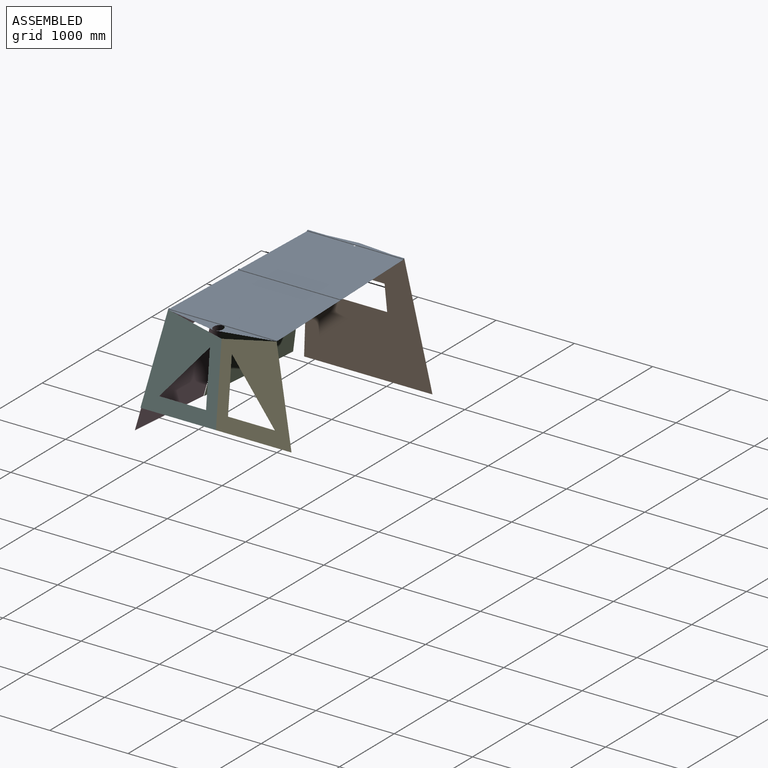
[diagram: assembled view]
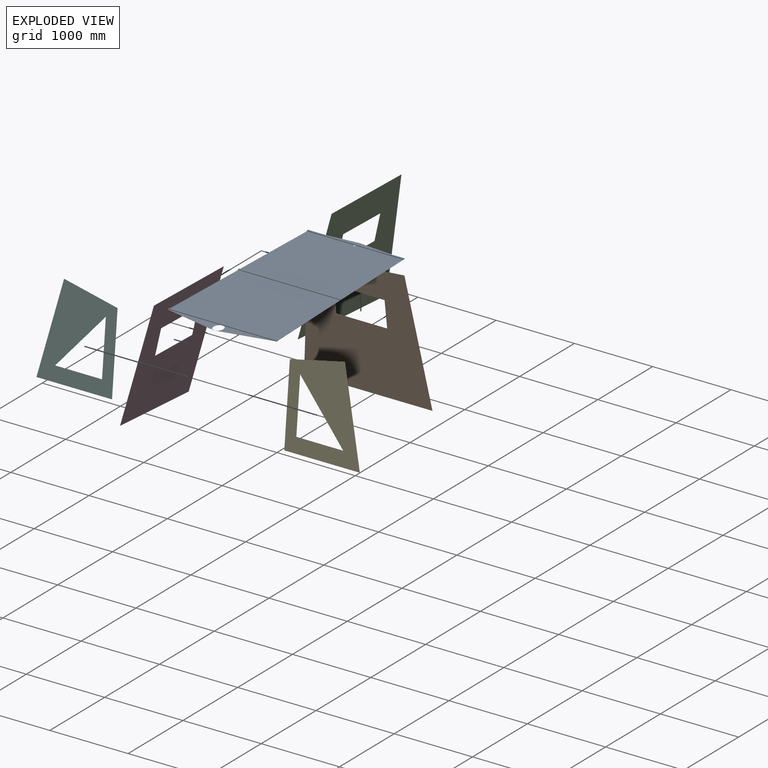
[diagram: exploded view]
GUIDED TOUR — FREECAD ASSEMBLY "cockpitzelt"

This assembly has 6 components, labeled P0..P5 below (a component is one placed body or linked part; the same part can appear more than once), held together by 0 modeled joints plus 9 derived contact edges. A joint is a constraint between two components; its type names the relative motion it leaves free:
  CONTACT — a derived adjacency edge — the two components touch in the source model (clearance under 2% of the assembly's diagonal); it is measured from the geometry, not a modeled constraint.
Axis/direction vectors are unit vectors and 'through' points are millimeter coordinates, both in the assembly's world frame.

MATES
  1. CONTACT "contact_0_1": P0 <-> P1, contact direction (0.000, 0.000, -1.000) through (-614.93, 2590.77, -0.24) mm (derived from contact, not a modeled constraint)
  2. CONTACT "contact_0_2": P0 <-> P2, contact direction (0.000, 1.000, 0.000) through (-653.85, 1368.33, -1.25) mm (derived from contact, not a modeled constraint)
  3. CONTACT "contact_0_3": P0 <-> P3, contact direction (-1.000, 0.000, 0.000) through (-650.41, 1369.42, -2.09) mm (derived from contact, not a modeled constraint)
  4. CONTACT "contact_0_4": P0 <-> P4, contact direction (1.000, 0.000, 0.000) through (692.84, 149.65, -0.02) mm (derived from contact, not a modeled constraint)
  5. CONTACT "contact_0_5": P0 <-> P5, contact direction (-1.000, 0.000, 0.000) through (-692.84, 149.65, 0.48) mm (derived from contact, not a modeled constraint)
  6. CONTACT "contact_1_2": P1 <-> P2, contact direction (-0.958, -0.091, -0.272) through (-615.18, 2588.79, -1.50) mm (derived from contact, not a modeled constraint)
  7. CONTACT "contact_2_3": P2 <-> P3, contact direction (0.000, -1.000, 0.000) through (-992.96, 1228.66, -1490.49) mm (derived from contact, not a modeled constraint)
  8. CONTACT "contact_3_5": P3 <-> P5, contact direction (0.000, -1.000, 0.000) through (-689.23, 149.37, -2.12) mm (derived from contact, not a modeled constraint)
  9. CONTACT "contact_4_5": P4 <-> P5, contact direction (-1.000, 0.000, 0.000) through (0.00, 133.56, -147.30) mm (derived from contact, not a modeled constraint)

ASSEMBLY ORDER
  1. P2 — the base component [order verified]
  2. P1 [order verified]
  3. P3 [order verified]
  4. P5 [order verified]
  5. P0 [order verified]
  6. P4 [order verified]
Order-tag legend:
  [order verified] — this step's position reverses a verified removal order: the component was checked to insert without passing through the ones already placed.

Of the 6 components, 6 carry a construction recipe — the FreeCAD feature program (sketches with constraints, then the solid features that consume them) that regenerates the part from scratch, quoted from this document or from the linked companion document it references; the rest are supplied as boundary geometry only. The tour below walks the components in assembly order: each is shown spotlighted twice — in the assembled view, then in the exploded view, where a leader line traces a displaced component back to its assembled socket (components that stay in place when exploded have no leader line; saturated green if recipe-attached, orange if geometry-only; every other component desaturated gray) — followed by its recipe or geometry summary and the mates that hold it.
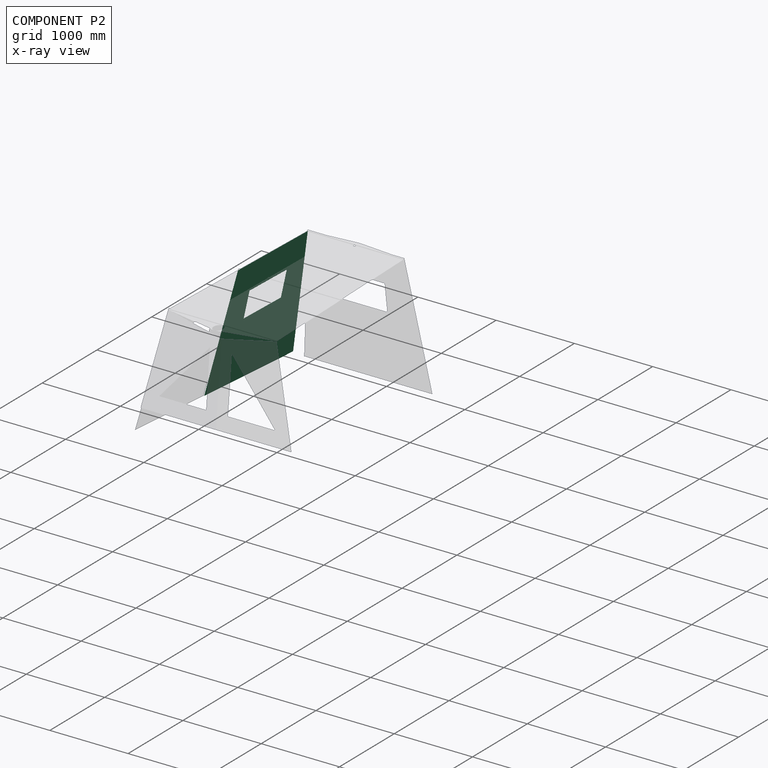
[diagram: component P2 — x-ray view]
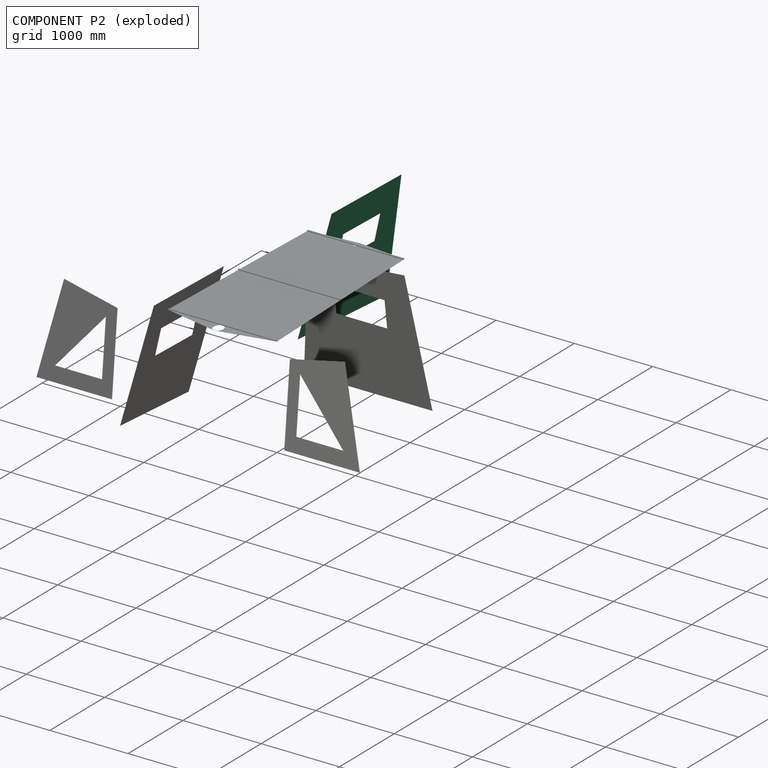
[diagram: component P2 — exploded]
COMPONENT P2 — recipe-attached ("Seitenwand-Achtern", modeled in this document).
Held by: resting contact with P0 (derived edge); resting contact with P1 (derived edge); resting contact with P3 (derived edge).
Construction recipe (the document's own serialized feature program — sketch geometry with constraints, then the solid features built on it; lengths are millimeters unless a unit is written):

FEATURE [Sketcher::SketchObject] Sketch008  label="Seitenwand-Achtern-Skizze"
  ArcFitTolerance = 1e-06
  AttachmentOffset = pos=(0,0,12) rot=(0,0,1;0rad)
  AttachmentSupport = -> [YZ_Plane004]
  FullyConstrained = true
  MakeInternals = false
  MapMode = 5
  Placement = pos=(12,0,0) rot=(0.57735,0.57735,0.57735;2.0944rad)
  sketch-geometry (4):
    g0: LineSegment StartX=1367.68 StartY=0 StartZ=0 EndX=1219.81 EndY=-1525.29 EndZ=0
    g1: LineSegment StartX=1219.81 StartY=-1525.29 StartZ=0 EndX=2797.73 EndY=-1606.32 EndZ=0
    g2: LineSegment StartX=2797.73 StartY=-1606.32 StartZ=0 EndX=2587.68 EndY=0 EndZ=0
    g3: LineSegment StartX=2587.68 StartY=0 StartZ=0 EndX=1367.68 EndY=0 EndZ=0
  constraints (12):
    c: PointOnObject(g0,g-1)
    c: PointOnObject(g2,g-1)
    c: Coincident(g0,g1)
    c: Coincident(g1,g2)
    c: Coincident(g2,g3)
    c: Coincident(g3,g0)
    c: Distance(g2,g2) = 1620
    c: Angle(g2,g1) = 1.38946
    c: DistanceX(g3,g3) = 1220
    c: Distance(g1) = 1580
    c: Distance(g0) = 1532.44
    c: DistanceX(g-1,g0) = 1367.68
FEATURE [PartDesign::Pad] Pad007
  Direction = (1,0,0)
  Length = 1
  Length2 = 10
  Midplane = true
  Placement = pos=(0,0,0) rot=(1,1,1;2.0944rad)
  Profile = -> Sketch008
  ReferenceAxis = -> Sketch008 [N_Axis]
  Refine = true
  Suppressed = false
  Type = 0
FEATURE [Sketcher::SketchObject] Sketch012
  ArcFitTolerance = 1e-06
  AttachmentSupport = -> [YZ_Plane004]
  FullyConstrained = true
  MakeInternals = false
  MapMode = 5
  Placement = pos=(0,0,0) rot=(0.57735,0.57735,0.57735;2.0944rad)
  sketch-geometry (4):
    g0: LineSegment StartX=1681.19 StartY=-385 StartZ=0 EndX=1681.19 EndY=-735 EndZ=0
    g1: LineSegment StartX=1681.19 StartY=-735 StartZ=0 EndX=2331.19 EndY=-735 EndZ=0
    g2: LineSegment StartX=2331.19 StartY=-735 StartZ=0 EndX=2331.19 EndY=-385 EndZ=0
    g3: LineSegment StartX=2331.19 StartY=-385 StartZ=0 EndX=1681.19 EndY=-385 EndZ=0
  constraints (12):
    c: Coincident(g0,g1)
    c: Coincident(g1,g2)
    c: Coincident(g2,g3)
    c: Coincident(g3,g0)
    c: Vertical(g0)
    c: Vertical(g2)
    c: Horizontal(g1)
    c: Horizontal(g3)
    c: DistanceX(g3,g3) = 650
    c: Distance(g2,g2) = 350
    c: DistanceY(g-1,g2) = -385
    c: DistanceX(g-2,g0) = 1681.19
FEATURE [PartDesign::Pocket] Pocket003  label="Fenster Seite Hinten"
  BaseFeature = -> Pad007
  Direction = (-1,0,0)
  Length = 5
  Length2 = 5
  Midplane = true
  Placement = pos=(0,0,0) rot=(1,1,1;2.0944rad)
  Profile = -> Sketch012
  ReferenceAxis = -> Sketch012 [N_Axis]
  Refine = true
  Suppressed = false
  Type = 1
FEATURE [PartDesign::Body] Body003  label="Seitenwand-Achtern"
  AllowCompound = false
  Group = -> [Sketch008,Pad007,Sketch012,Pocket003]
  Origin = -> Origin004
  Placement = pos=(-708,0.000244141,9.15527e-05) rot=(0.01555,0.989876,-0.141078;0.22179rad)
  Tip = -> Pocket003
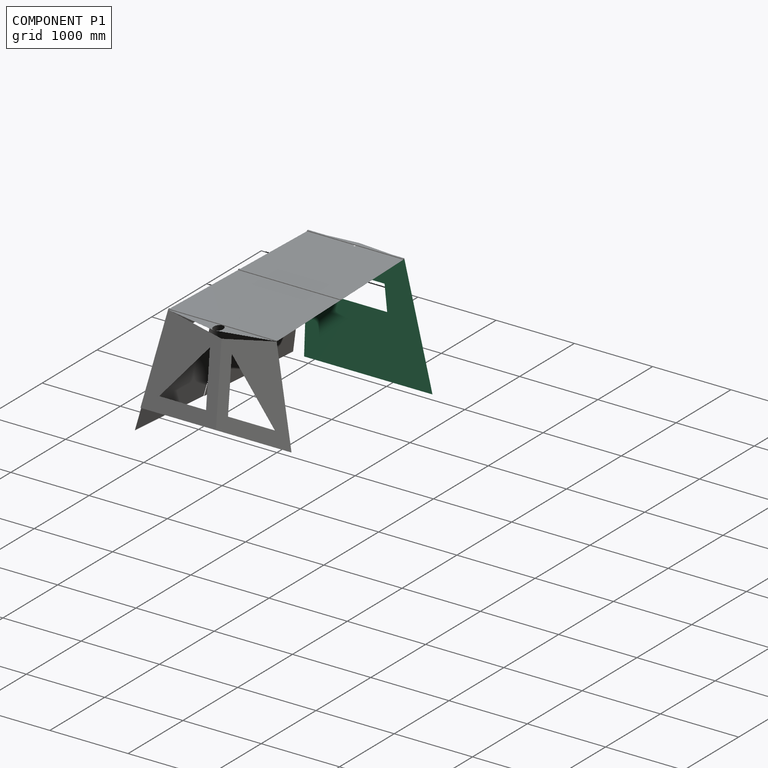
[diagram: component P1 — assembled]
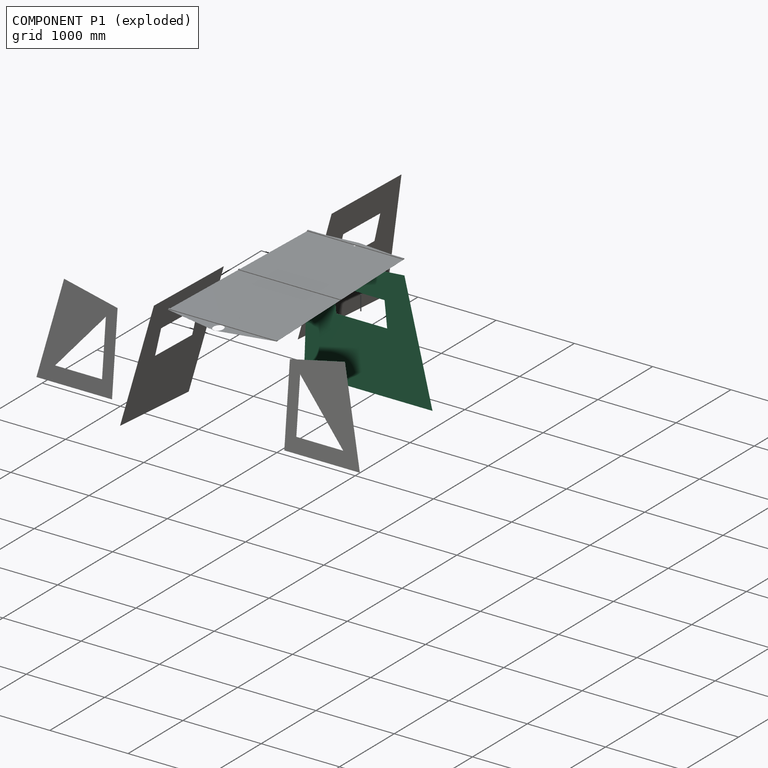
[diagram: component P1 — exploded]
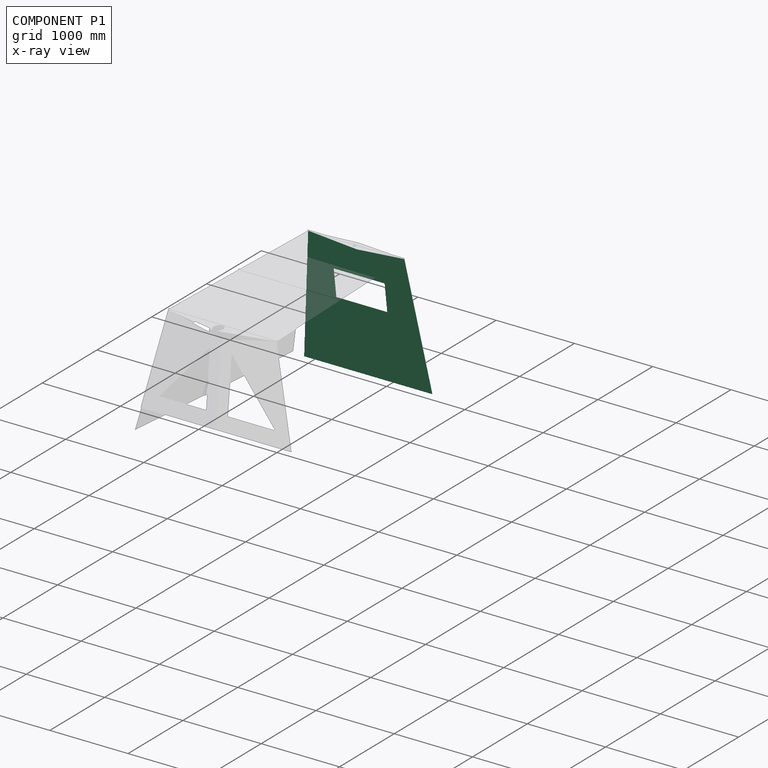
[diagram: component P1 — x-ray view]
COMPONENT P1 — recipe-attached ("Heckwand", modeled in this document).
Held by: resting contact with P0 (derived edge); resting contact with P2 (derived edge).
Construction recipe (the document's own serialized feature program — sketch geometry with constraints, then the solid features built on it; lengths are millimeters unless a unit is written):

FEATURE [Sketcher::SketchObject] Sketch007
  ArcFitTolerance = 1e-06
  AttachmentSupport = -> [XZ_Plane003]
  FullyConstrained = true
  MakeInternals = false
  MapMode = 5
  Placement = pos=(0,0,0) rot=(1,0,0;1.5708rad)
  sketch-geometry (5):
    g0: LineSegment StartX=0 StartY=-55 StartZ=0 EndX=614.865 EndY=0 EndZ=0
    g1: LineSegment StartX=614.865 StartY=0 StartZ=0 EndX=820 EndY=-1606.96 EndZ=0
    g2: LineSegment StartX=820 StartY=-1606.96 StartZ=0 EndX=-820 EndY=-1606.96 EndZ=0
    g3: LineSegment StartX=-820 StartY=-1606.96 StartZ=0 EndX=-614.865 EndY=0 EndZ=0
    g4: LineSegment StartX=-614.865 StartY=0 StartZ=0 EndX=0 EndY=-55 EndZ=0
  constraints (15):
    c: Coincident(g0,g1)
    c: Coincident(g1,g2)
    c: Horizontal(g2)
    c: Coincident(g2,g3)
    c: Coincident(g3,g4)
    c: Coincident(g4,g0)
    c: Distance(g3,g3) = 1620
    c: Distance(g1,g1) = 1620
    c: Distance(g4,g4) = 617.32
    c: Distance(g0,g0) = 617.32
    c: DistanceX(g2,g2) = 1640
    c: PointOnObject(g3,g-1)
    c: PointOnObject(g0,g-1)
    c: PointOnObject(g0,g-2)
    c: DistanceY(g0,g-1) = 55
FEATURE [PartDesign::Pad] Pad005
  Direction = (0,-1,2e-16)
  Length = 1
  Length2 = 10
  Midplane = true
  Placement = pos=(0,0,0) rot=(1,0,0;1.5708rad)
  Profile = -> Sketch007
  ReferenceAxis = -> Sketch007 [N_Axis]
  Refine = true
  Suppressed = false
  Type = 0
FEATURE [Sketcher::SketchObject] Sketch011
  ArcFitTolerance = 1e-06
  AttachmentSupport = -> [XZ_Plane003]
  FullyConstrained = true
  MakeInternals = false
  MapMode = 5
  Placement = pos=(0,0,0) rot=(1,0,0;1.5708rad)
  sketch-geometry (5):
    g0: LineSegment StartX=-325 StartY=-385 StartZ=0 EndX=-325 EndY=-735 EndZ=0
    g1: LineSegment StartX=-325 StartY=-735 StartZ=0 EndX=325 EndY=-735 EndZ=0
    g2: LineSegment StartX=325 StartY=-735 StartZ=0 EndX=325 EndY=-385 EndZ=0
    g3: LineSegment StartX=325 StartY=-385 StartZ=0 EndX=-325 EndY=-385 EndZ=0
    g4: GeomPoint X=0 Y=0 Z=0
  constraints (12):
    c: Coincident(g0,g1)
    c: Coincident(g1,g2)
    c: Coincident(g2,g3)
    c: Coincident(g3,g0)
    c: Vertical(g0)
    c: Vertical(g2)
    c: Horizontal(g1)
    c: Symmetric(g0,g2,g-2)
    c: DistanceX(g3,g3) = 650
    c: DistanceY(g2,g2) = 350
    c: Distance(g4,g3) = 385
    c: Coincident(g4,g-1)
FEATURE [PartDesign::Pocket] Pocket002  label="Fenster Achtern"
  BaseFeature = -> Pad005
  Direction = (0,1,-2e-16)
  Length = 5
  Length2 = 5
  Midplane = true
  Placement = pos=(0,0,0) rot=(1,0,0;1.5708rad)
  Profile = -> Sketch011
  ReferenceAxis = -> Sketch011 [N_Axis]
  Refine = true
  Suppressed = false
  Type = 1
FEATURE [PartDesign::Body] Body002  label="Heckwand"
  AllowCompound = false
  Group = -> [Sketch007,Pad005,Sketch011,Pocket002]
  Origin = -> Origin003
  Placement = pos=(0,2592.03,-0.417519) rot=(-1,0,0;6.14635rad)
  Tip = -> Pocket002
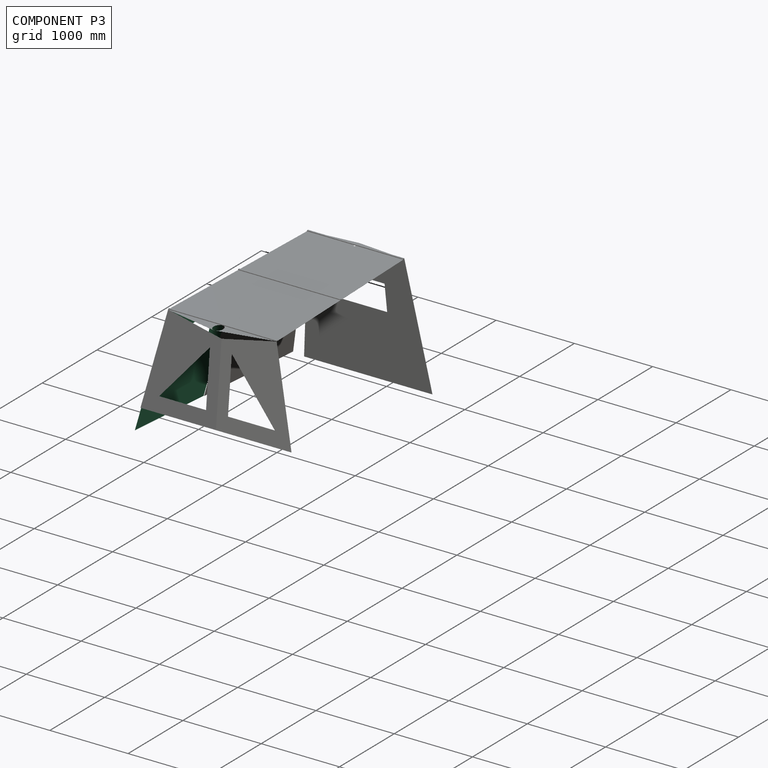
[diagram: component P3 — assembled]
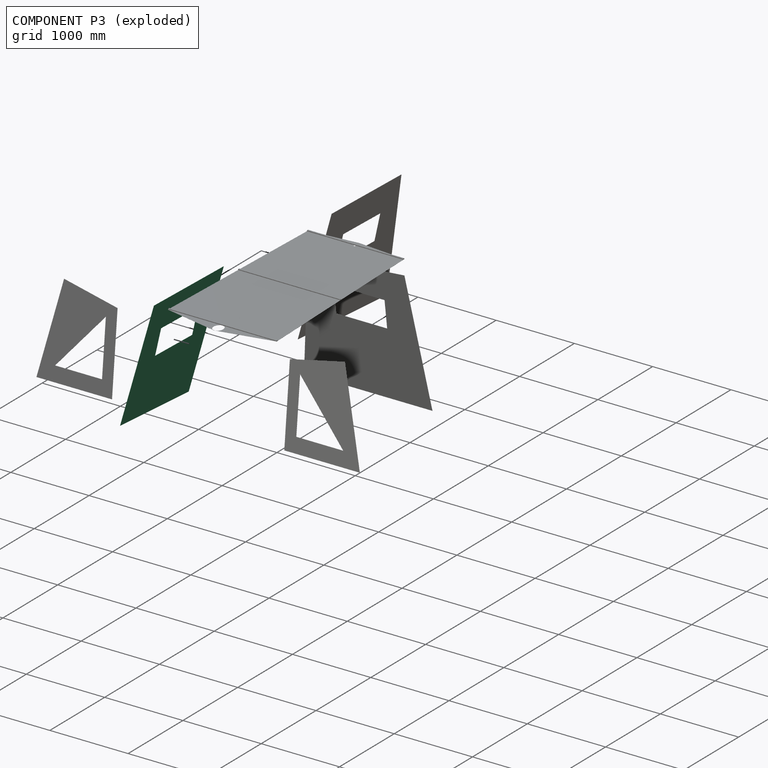
[diagram: component P3 — exploded]
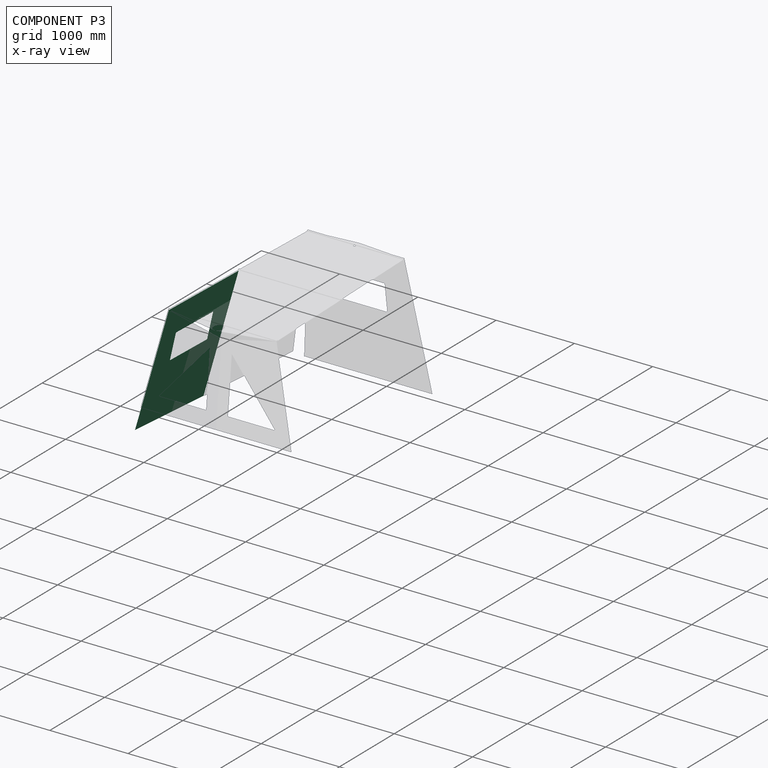
[diagram: component P3 — x-ray view]
COMPONENT P3 — recipe-attached ("Seitenwand-Vorn", modeled in this document).
Held by: resting contact with P0 (derived edge); resting contact with P2 (derived edge); resting contact with P5 (derived edge).
Construction recipe (the document's own serialized feature program — sketch geometry with constraints, then the solid features built on it; lengths are millimeters unless a unit is written):

FEATURE [Sketcher::SketchObject] Sketch009  label="Seitenwand-Vorn-Skizze"
  ArcFitTolerance = 1e-06
  AttachmentOffset = pos=(0,0,12) rot=(0,0,1;0rad)
  AttachmentSupport = -> [YZ_Plane005]
  FullyConstrained = true
  MakeInternals = false
  MapMode = 5
  Placement = pos=(12,0,0) rot=(0.57735,0.57735,0.57735;2.0944rad)
  sketch-geometry (4):
    g0: LineSegment StartX=150.084 StartY=0 StartZ=0 EndX=0 EndY=-1462.32 EndZ=0
    g1: LineSegment StartX=0 StartY=-1462.32 StartZ=0 EndX=1218.39 EndY=-1524.89 EndZ=0
    g2: LineSegment StartX=1218.39 StartY=-1524.89 StartZ=0 EndX=1370.08 EndY=0 EndZ=0
    g3: LineSegment StartX=1370.08 StartY=0 StartZ=0 EndX=150.084 EndY=0 EndZ=0
  constraints (12):
    c: PointOnObject(g0,g-1)
    c: PointOnObject(g2,g-1)
    c: PointOnObject(g0,g-2)
    c: Coincident(g0,g1)
    c: Coincident(g1,g2)
    c: Coincident(g2,g3)
    c: Coincident(g3,g0)
    c: Distance(g0,g0) = 1470
    c: Angle(g0,g3) = 1.67307
    c: Angle(g1,g0) = 1.51983
    c: DistanceX(g3,g3) = 1220
    c: Distance(g1,g1) = 1220
FEATURE [PartDesign::Pad] Pad006
  Direction = (1,0,0)
  Length = 1
  Length2 = 10
  Midplane = true
  Placement = pos=(0,0,0) rot=(1,1,1;2.0944rad)
  Profile = -> Sketch009
  ReferenceAxis = -> Sketch009 [N_Axis]
  Refine = true
  Suppressed = false
  Type = 0
FEATURE [Sketcher::SketchObject] Sketch013
  ArcFitTolerance = 1e-06
  AttachmentSupport = -> [YZ_Plane005]
  FullyConstrained = true
  MakeInternals = false
  MapMode = 5
  Placement = pos=(0,0,0) rot=(0.57735,0.57735,0.57735;2.0944rad)
  sketch-geometry (4):
    g0: LineSegment StartX=391.03 StartY=-385 StartZ=0 EndX=391.03 EndY=-735 EndZ=0
    g1: LineSegment StartX=391.03 StartY=-735 StartZ=0 EndX=1041.03 EndY=-735 EndZ=0
    g2: LineSegment StartX=1041.03 StartY=-735 StartZ=0 EndX=1041.03 EndY=-385 EndZ=0
    g3: LineSegment StartX=1041.03 StartY=-385 StartZ=0 EndX=391.03 EndY=-385 EndZ=0
  constraints (12):
    c: Coincident(g0,g1)
    c: Coincident(g1,g2)
    c: Coincident(g2,g3)
    c: Coincident(g3,g0)
    c: Vertical(g0)
    c: Vertical(g2)
    c: Horizontal(g1)
    c: Horizontal(g3)
    c: DistanceX(g3,g3) = 650
    c: DistanceY(g2,g2) = 350
    c: DistanceY(g-1,g2) = -385
    c: DistanceX(g-2,g0) = 391.03
FEATURE [PartDesign::Pocket] Pocket004
  BaseFeature = -> Pad006
  Direction = (-1,0,0)
  Length = 5
  Length2 = 5
  Midplane = true
  Placement = pos=(0,0,0) rot=(1,1,1;2.0944rad)
  Profile = -> Sketch013
  ReferenceAxis = -> Sketch013 [N_Axis]
  Refine = true
  Suppressed = false
  Type = 1
FEATURE [PartDesign::Body] Body004  label="Seitenwand-Vorn"
  AllowCompound = false
  Group = -> [Sketch009,Pad006,Sketch013,Pocket004]
  Origin = -> Origin005
  Placement = pos=(-701.185,-0.213935,-1.5829) rot=(0.015562,0.990608,-0.135846;0.230258rad)
  Tip = -> Pocket004
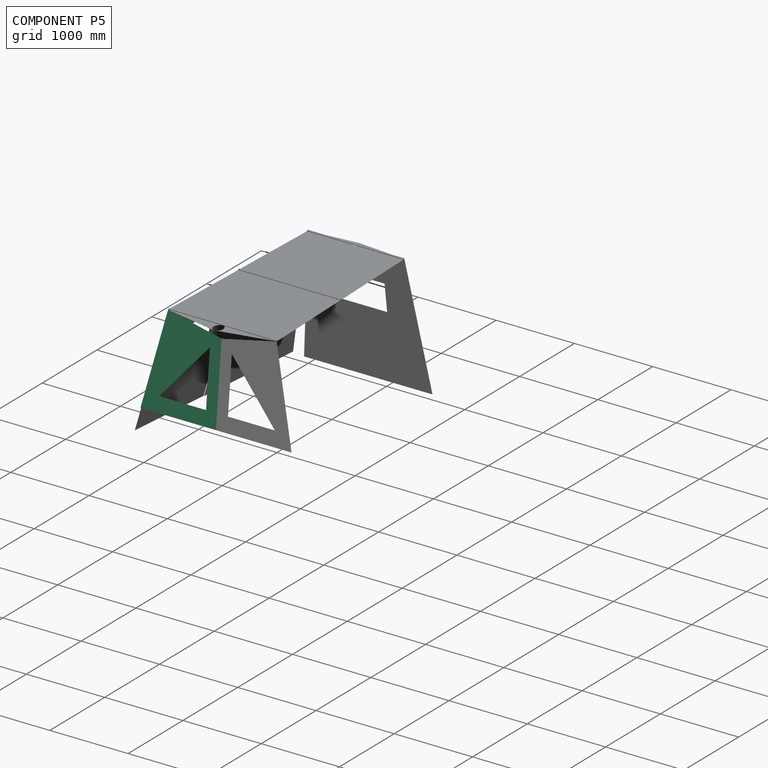
[diagram: component P5 — assembled]
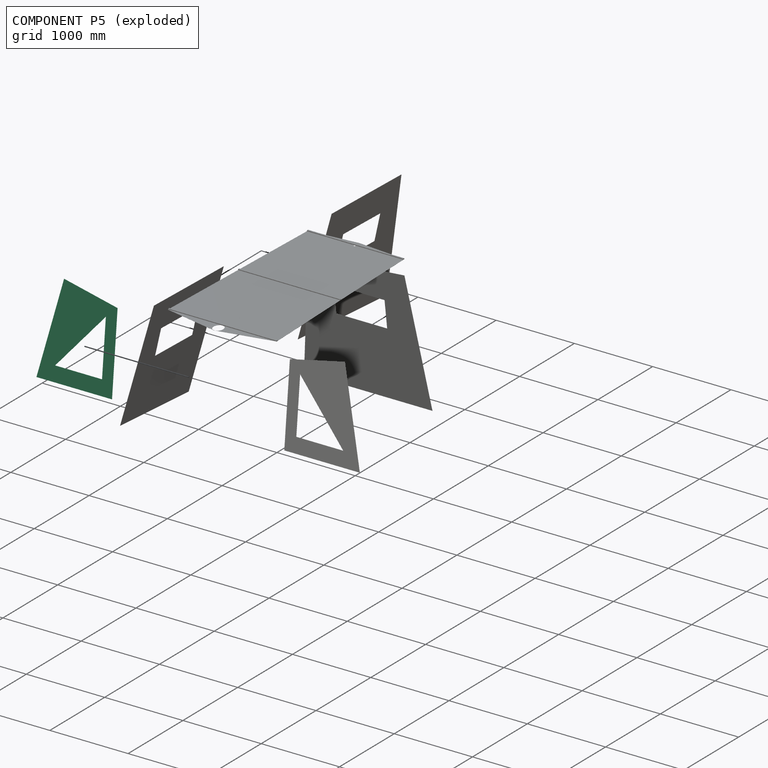
[diagram: component P5 — exploded]
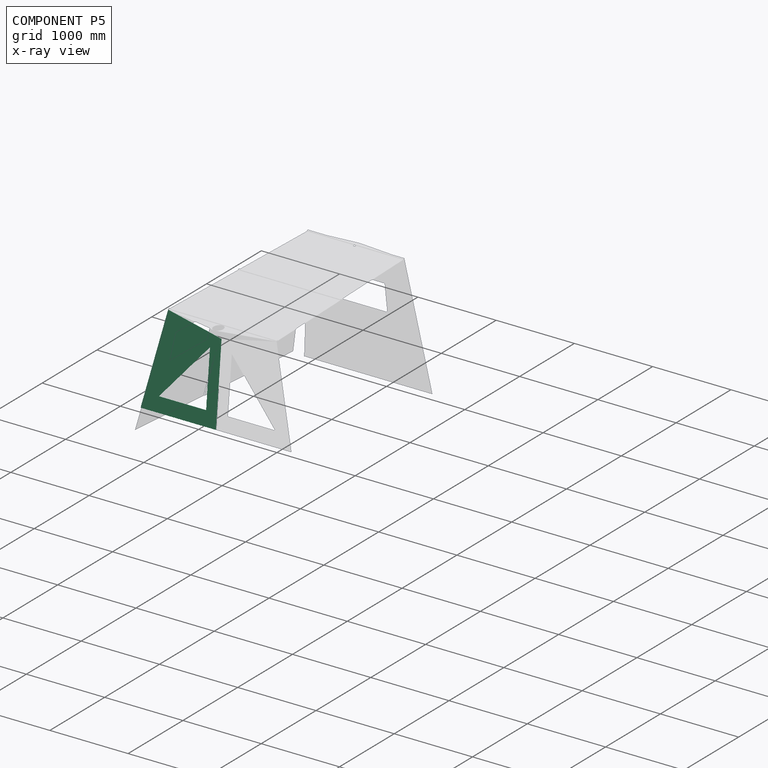
[diagram: component P5 — x-ray view]
COMPONENT P5 — recipe-attached ("Vorderwand-Sb", modeled in this document).
Held by: resting contact with P0 (derived edge); resting contact with P3 (derived edge); resting contact with P4 (derived edge).
Construction recipe (the document's own serialized feature program — sketch geometry with constraints, then the solid features built on it; lengths are millimeters unless a unit is written):

FEATURE [Sketcher::SketchObject] Sketch015  label="Vorderwand-Sb-Skizze"
  ArcFitTolerance = 1e-06
  AttachmentSupport = -> [XZ_Plane008]
  FullyConstrained = true
  MakeInternals = false
  MapMode = 5
  Placement = pos=(0,0,0) rot=(1,0,0;1.5708rad)
  sketch-geometry (4):
    g0: LineSegment StartX=0 StartY=-1168.81 StartZ=0 EndX=-965 EndY=-1168.81 EndZ=0
    g1: LineSegment StartX=-965 StartY=-1168.81 StartZ=0 EndX=-693.178 EndY=0.00226827 EndZ=0
    g2: LineSegment StartX=-693.178 StartY=0.00226827 StartZ=0 EndX=0 EndY=-148.086 EndZ=0
    g3: LineSegment StartX=0 StartY=-148.086 StartZ=0 EndX=0 EndY=-1168.81 EndZ=0
  constraints (12):
    c: PointOnObject(g0,g-2)
    c: Horizontal(g0)
    c: Coincident(g0,g1)
    c: Coincident(g1,g2)
    c: DistanceX(g0,g0) = 965
    c: Distance(g1,g1) = 1200
    c: Distance(g2,g2) = 708.82
    c: PointOnObject(g2,g-2)
    c: DistanceY(g2,g-1) = 148.086
    c: Coincident(g3,g2)
    c: Coincident(g3,g0)
    c: Distance(g3) = 1020.72
FEATURE [PartDesign::Pad] Pad010
  Direction = (0,-1,2e-16)
  Length = 1
  Length2 = 10
  Midplane = true
  Placement = pos=(0,0,0) rot=(1,0,0;1.5708rad)
  Profile = -> Sketch015
  ReferenceAxis = -> Sketch015 [N_Axis]
  Refine = true
  Suppressed = false
  Type = 0
FEATURE [Sketcher::SketchObject] Sketch017
  ArcFitTolerance = 1e-06
  AttachmentSupport = -> [XZ_Plane008]
  FullyConstrained = true
  MakeInternals = false
  MapMode = 5
  Placement = pos=(0,0,0) rot=(1,0,0;1.5708rad)
  sketch-geometry (3):
    g0: LineSegment StartX=-740 StartY=-981.16 StartZ=0 EndX=-140 EndY=-281.16 EndZ=0
    g1: LineSegment StartX=-140 StartY=-281.16 StartZ=0 EndX=-140 EndY=-981.16 EndZ=0
    g2: LineSegment StartX=-140 StartY=-981.16 StartZ=0 EndX=-740 EndY=-981.16 EndZ=0
  constraints (9):
    c: Coincident(g0,g1)
    c: Coincident(g1,g2)
    c: Coincident(g2,g0)
    c: Horizontal(g2)
    c: Distance(g2) = 600
    c: Distance(g1) = 700
    c: Perpendicular(g1,g2)
    c: DistanceX(g-2,g0) = -140
    c: DistanceY(g-1,g0) = -281.16
FEATURE [PartDesign::Pocket] Pocket005
  BaseFeature = -> Pad010
  Direction = (0,1,-2e-16)
  Length = 5
  Length2 = 5
  Midplane = true
  Placement = pos=(0,0,0) rot=(1,0,0;1.5708rad)
  Profile = -> Sketch017
  ReferenceAxis = -> Sketch017 [N_Axis]
  Refine = true
  Suppressed = false
  Type = 1
FEATURE [PartDesign::Body] Body007  label="Vorderwand-Sb"
  AllowCompound = false
  Group = -> [Sketch015,Pad010,Sketch017,Pocket005]
  Origin = -> Origin008
  Placement = pos=(0,148.8,0) rot=(1,0,0;6.1837rad)
  Tip = -> Pocket005
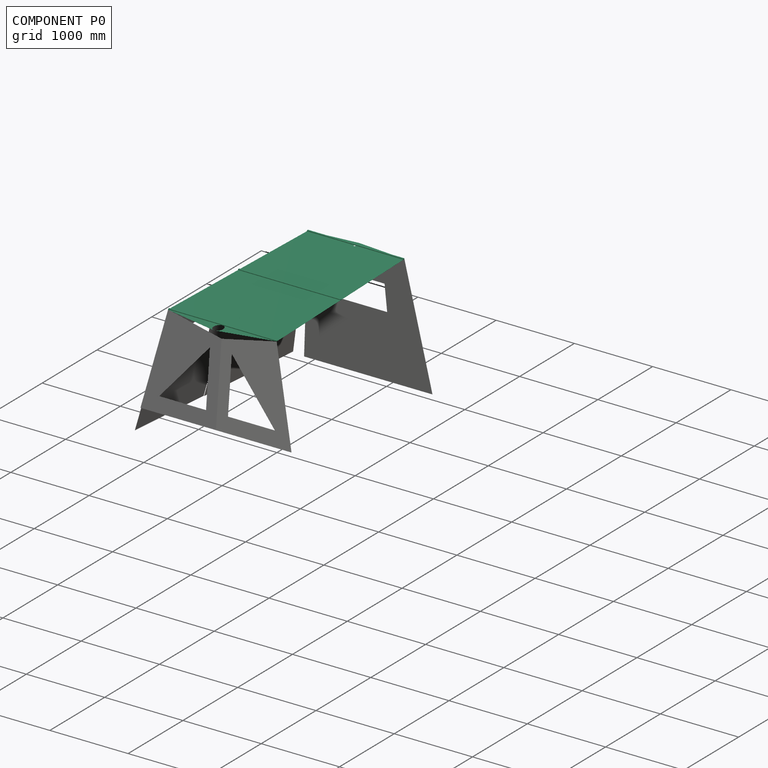
[diagram: component P0 — assembled]
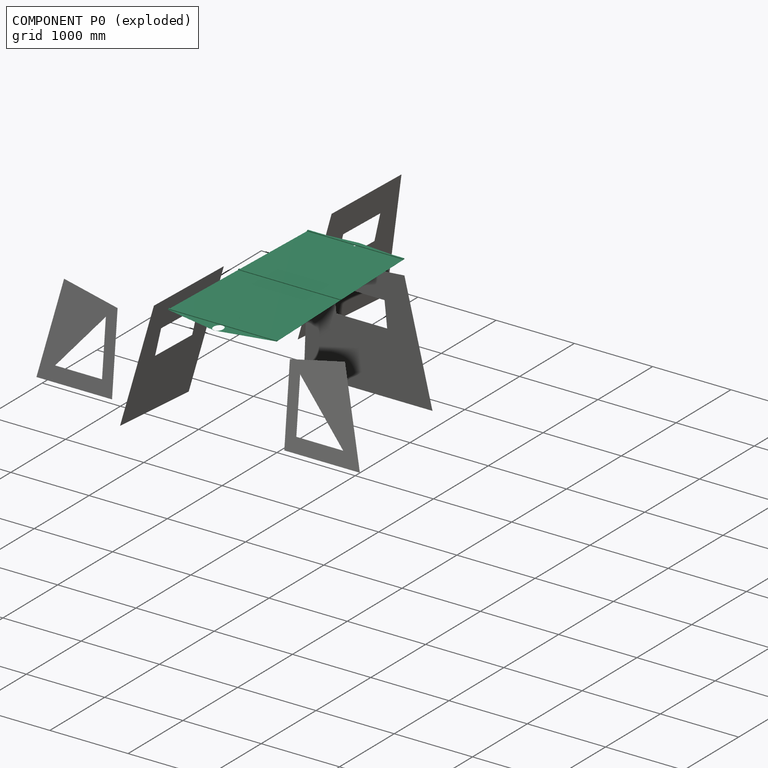
[diagram: component P0 — exploded]
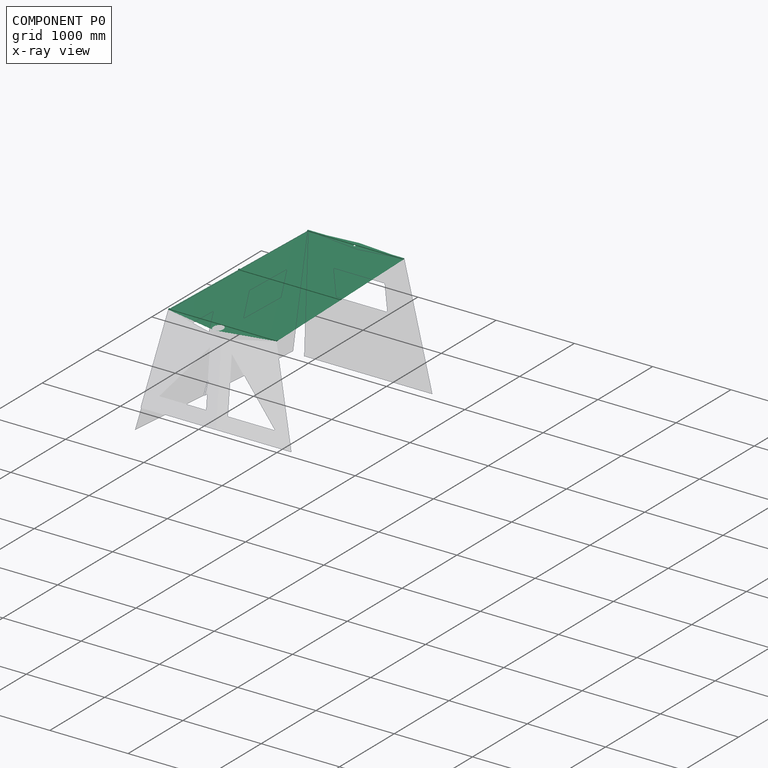
[diagram: component P0 — x-ray view]
COMPONENT P0 — recipe-attached ("Dach", modeled in this document).
Held by: resting contact with P1 (derived edge); resting contact with P2 (derived edge); resting contact with P3 (derived edge); resting contact with P4 (derived edge); resting contact with P5 (derived edge).
Construction recipe (the document's own serialized feature program — sketch geometry with constraints, then the solid features built on it; lengths are millimeters unless a unit is written):

FEATURE [Sketcher::SketchObject] Sketch  label="Dachskizze"
  ArcFitTolerance = 1e-06
  AttachmentOffset = pos=(0,0,0) rot=(0,0,1;1.5708rad)
  AttachmentSupport = -> [XY_Plane]
  FullyConstrained = true
  MakeInternals = false
  MapMode = 5
  Placement = pos=(0,0,0) rot=(0,0,1;1.5708rad)
  expr: .AttachmentOffset.Rotation.Angle = 90
  sketch-geometry (6):
    g0: LineSegment StartX=0 StartY=0 StartZ=0 EndX=144.716 EndY=693.89 EndZ=0
    g1: LineSegment StartX=2583.42 StartY=614.241 StartZ=0 EndX=144.716 EndY=693.89 EndZ=0
    g2: LineSegment StartX=0 StartY=0 StartZ=0 EndX=151.454 EndY=-692.45 EndZ=0
    g3: LineSegment StartX=2590.25 StartY=-615.741 StartZ=0 EndX=151.454 EndY=-692.45 EndZ=0
    g4: LineSegment StartX=2645 StartY=0 StartZ=0 EndX=2590.25 EndY=-615.741 EndZ=0
    g5: LineSegment StartX=2583.42 StartY=614.241 StartZ=0 EndX=2645 EndY=0 EndZ=0
  constraints (17):
    c: Coincident(g5,g1)
    c: Distance(g3) = 2440
    c: Distance(g1) = 2440
    c: Distance(g0,g4) = 2645
    c: Distance(g0,g2) = 708.82
    c: Distance(g0,g0) = 708.82
    c: PointOnObject(g4,g-1)
    c: Coincident(g0,g1)
    c: Coincident(g0,g2)
    c: Coincident(g0,g-1)
    c: Coincident(g3,g2)
    c: Coincident(g5,g4)
    c: Coincident(g3,g4)
    c: Distance(g1,g3) = 1230
    c: Distance(g5,g5) = 617.32
    c: Distance(g4,g3) = 618.17
    c: Angle(g0,g1) = 1.74376
FEATURE [PartDesign::Pad] Pad
  Direction = (0,0,1)
  Length = 1
  Length2 = 10
  Profile = -> Sketch
  ReferenceAxis = -> Sketch [N_Axis]
  Refine = true
  Suppressed = false
  Type = 0
FEATURE [Sketcher::SketchObject] Sketch001  label="Mastausschnitt"
  ArcFitTolerance = 1e-06
  AttachmentOffset = pos=(0,0,0) rot=(0,0,1;1.5708rad)
  AttachmentSupport = -> [Pad]
  FullyConstrained = true
  MakeInternals = false
  MapMode = 5
  Placement = pos=(0,0,1) rot=(0,0,1;1.5708rad)
  sketch-geometry (5):
    g0: Ellipse CenterX=76.3 CenterY=0 CenterZ=0 NormalX=0 NormalY=0 NormalZ=1 MajorRadius=75 MinorRadius=60 AngleXU=0
    g1: LineSegment [constr] StartX=151.3 StartY=0 StartZ=0 EndX=1.3 EndY=0 EndZ=0
    g2: LineSegment [constr] StartX=76.3 StartY=60 StartZ=0 EndX=76.3 EndY=-60 EndZ=0
    g3: GeomPoint [constr] X=121.3 Y=0 Z=0
    g4: GeomPoint [constr] X=31.3 Y=0 Z=0
  constraints (6):
    c: InternalAlignment(g1-g4 -> g0) x4
    c: Distance(g2,g2) = 120
    c: Distance(g1,g1) = 150
    c: Distance(g-1,g1) = 1.3
    c: PointOnObject(g3,g-1)
    c: PointOnObject(g4,g-1)
FEATURE [Sketcher::SketchObject] Sketch002  label="Dirkauschnitt"
  ArcFitTolerance = 1e-06
  AttachmentOffset = pos=(0,0,0) rot=(0,0,1;1.5708rad)
  AttachmentSupport = -> [XY_Plane]
  FullyConstrained = true
  MakeInternals = false
  MapMode = 5
  Placement = pos=(0,0,0) rot=(0,0,1;1.5708rad)
  sketch-geometry (4):
    g0: LineSegment StartX=2560 StartY=10 StartZ=0 EndX=2590 EndY=10 EndZ=0
    g1: LineSegment StartX=2590 StartY=10 StartZ=0 EndX=2590 EndY=-10 EndZ=0
    g2: LineSegment StartX=2590 StartY=-10 StartZ=0 EndX=2560 EndY=-10 EndZ=0
    g3: ArcOfCircle CenterX=2560 CenterY=-1e-16 CenterZ=0 NormalX=0 NormalY=0 NormalZ=1 AngleXU=0 Radius=10 StartAngle=1.5708 EndAngle=4.71239
  constraints (11):
    c: Horizontal(g0)
    c: Coincident(g0,g1)
    c: Coincident(g1,g2)
    c: Horizontal(g2)
    c: Tangent(g2,g3) = 1.5708
    c: Coincident(g3,g0)
    c: DistanceY(g1,g1) = 20
    c: DistanceX(g0,g0) = 30
    c: Radius(g3) = 10
    c: Distance(g-1,g1) = 2590
    c: Symmetric(g0,g1,g-1)
FEATURE [PartDesign::Pocket] Pocket  label="Mastausschnitt001"
  BaseFeature = -> Pad
  Direction = (0,0,-1)
  Length = 5
  Length2 = 5
  Midplane = true
  Profile = -> Sketch001
  ReferenceAxis = -> Sketch001 [N_Axis]
  Refine = true
  Suppressed = false
  Type = 1
FEATURE [PartDesign::Pocket] Pocket001  label="Dirkausschnitt"
  BaseFeature = -> Pocket
  Direction = (0,0,-1)
  Length = 5
  Length2 = 5
  Midplane = true
  Profile = -> Sketch002
  ReferenceAxis = -> Sketch002 [N_Axis]
  Refine = true
  Suppressed = false
  Type = 1
FEATURE [Sketcher::SketchObject] Sketch003  label="Dachstange vorn"
  ArcFitTolerance = 1e-06
  AttachmentOffset = pos=(0,0,0) rot=(0,0,1;1.5708rad)
  AttachmentSupport = -> [XY_Plane]
  FullyConstrained = true
  MakeInternals = false
  MapMode = 5
  Placement = pos=(0,0,0) rot=(0,0,1;1.5708rad)
  sketch-geometry (4):
    g0: LineSegment StartX=150 StartY=692.5 StartZ=0 EndX=150 EndY=-692.5 EndZ=0
    g1: LineSegment StartX=150 StartY=692.5 StartZ=0 EndX=170 EndY=692.5 EndZ=0
    g2: LineSegment StartX=170 StartY=692.5 StartZ=0 EndX=170 EndY=-692.5 EndZ=0
    g3: LineSegment StartX=170 StartY=-692.5 StartZ=0 EndX=150 EndY=-692.5 EndZ=0
  constraints (11):
    c: DistanceY(g0,g0) = 1385
    c: Symmetric(g0,g0,g-1)
    c: DistanceX(g-1,g0) = 150
    c: Coincident(g0,g1)
    c: Horizontal(g1)
    c: Coincident(g1,g2)
    c: Vertical(g2)
    c: Coincident(g2,g3)
    c: Coincident(g3,g0)
    c: Horizontal(g3)
    c: DistanceX(g0,g1) = 20
FEATURE [PartDesign::Pad] Pad001  label="Stange Vorn"
  BaseFeature = -> Pocket001
  Direction = (0,0,1)
  Length = 10
  Length2 = 10
  Profile = -> Sketch003
  ReferenceAxis = -> Sketch003 [N_Axis]
  Refine = true
  Suppressed = false
  Type = 0
FEATURE [Sketcher::SketchObject] Sketch004  label="Dachstange Mitte"
  ArcFitTolerance = 1e-06
  AttachmentOffset = pos=(0,0,0) rot=(0,0,1;1.5708rad)
  AttachmentSupport = -> [XY_Plane]
  FullyConstrained = true
  MakeInternals = false
  MapMode = 5
  Placement = pos=(0,0,0) rot=(0,0,1;1.5708rad)
  sketch-geometry (4):
    g0: LineSegment StartX=1370 StartY=655 StartZ=0 EndX=1370 EndY=-655 EndZ=0
    g1: LineSegment StartX=1370 StartY=-655 StartZ=0 EndX=1390 EndY=-655 EndZ=0
    g2: LineSegment StartX=1390 StartY=-655 StartZ=0 EndX=1390 EndY=655 EndZ=0
    g3: LineSegment StartX=1390 StartY=655 StartZ=0 EndX=1370 EndY=655 EndZ=0
  constraints (11):
    c: Coincident(g0,g1)
    c: Coincident(g1,g2)
    c: Coincident(g2,g3)
    c: Coincident(g3,g0)
    c: Vertical(g2)
    c: Horizontal(g1)
    c: Horizontal(g3)
    c: DistanceY(g2,g2) = 1310
    c: DistanceX(g3,g3) = 20
    c: Symmetric(g0,g0,g-1)
    c: DistanceX(g-1,g0) = 1370
FEATURE [Sketcher::SketchObject] Sketch005  label="Dachstange Achtern"
  ArcFitTolerance = 1e-06
  AttachmentOffset = pos=(0,0,0) rot=(0,0,1;1.5708rad)
  AttachmentSupport = -> [XY_Plane]
  FullyConstrained = true
  MakeInternals = false
  MapMode = 5
  Placement = pos=(0,0,0) rot=(0,0,1;1.5708rad)
  sketch-geometry (4):
    g0: LineSegment StartX=2570 StartY=615 StartZ=0 EndX=2570 EndY=-615 EndZ=0
    g1: LineSegment StartX=2570 StartY=-615 StartZ=0 EndX=2590 EndY=-615 EndZ=0
    g2: LineSegment StartX=2590 StartY=-615 StartZ=0 EndX=2590 EndY=615 EndZ=0
    g3: LineSegment StartX=2590 StartY=615 StartZ=0 EndX=2570 EndY=615 EndZ=0
  constraints (11):
    c: Coincident(g0,g1)
    c: Coincident(g1,g2)
    c: Coincident(g2,g3)
    c: Coincident(g3,g0)
    c: Vertical(g2)
    c: Horizontal(g1)
    c: Horizontal(g3)
    c: Distance(g0,g2) = 20
    c: Distance(g1,g3) = 1230
    c: Symmetric(g0,g0,g-1)
    c: DistanceX(g-1,g2) = 2590
FEATURE [PartDesign::Pad] Pad002  label="Dachstange Achtern001"
  BaseFeature = -> Pad001
  Direction = (0,0,1)
  Length = 10
  Length2 = 10
  Profile = -> Sketch005
  ReferenceAxis = -> Sketch005 [N_Axis]
  Refine = true
  Suppressed = false
  Type = 0
FEATURE [PartDesign::Pad] Pad003  label="Dachstange Mitte001"
  BaseFeature = -> Pad002
  Direction = (0,0,1)
  Length = 10
  Length2 = 10
  Profile = -> Sketch004
  ReferenceAxis = -> Sketch004 [N_Axis]
  Refine = true
  Suppressed = false
  Type = 0
FEATURE [PartDesign::Body] Body  label="Dach"
  AllowCompound = false
  Group = -> [Sketch,Pad,Sketch001,Sketch002,Pocket,Pocket001,Sketch003,Pad001,Sketch004,Sketch005,Pad002,Pad003]
  Origin = -> Origin
  Tip = -> Pad003
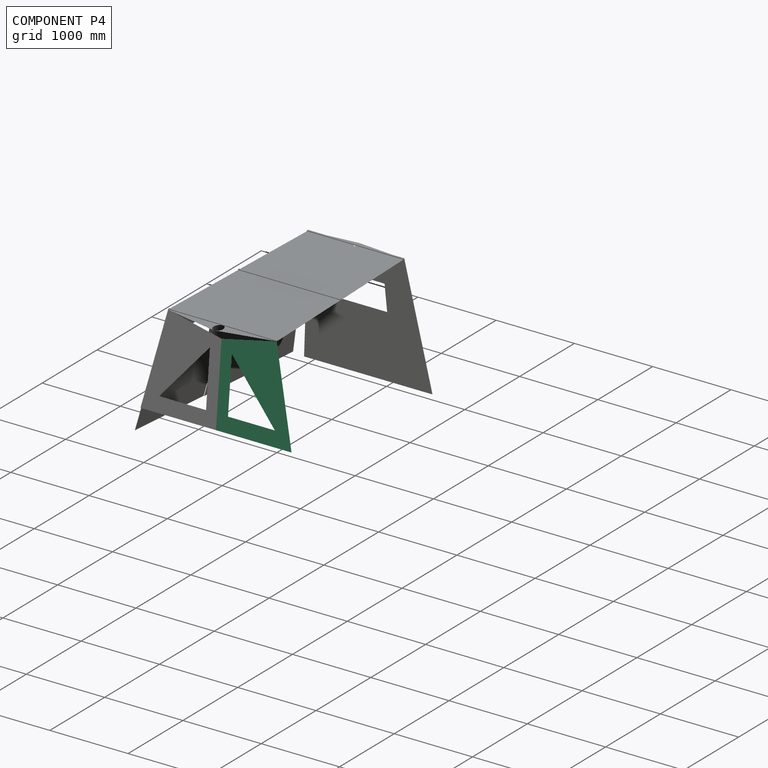
[diagram: component P4 — assembled]
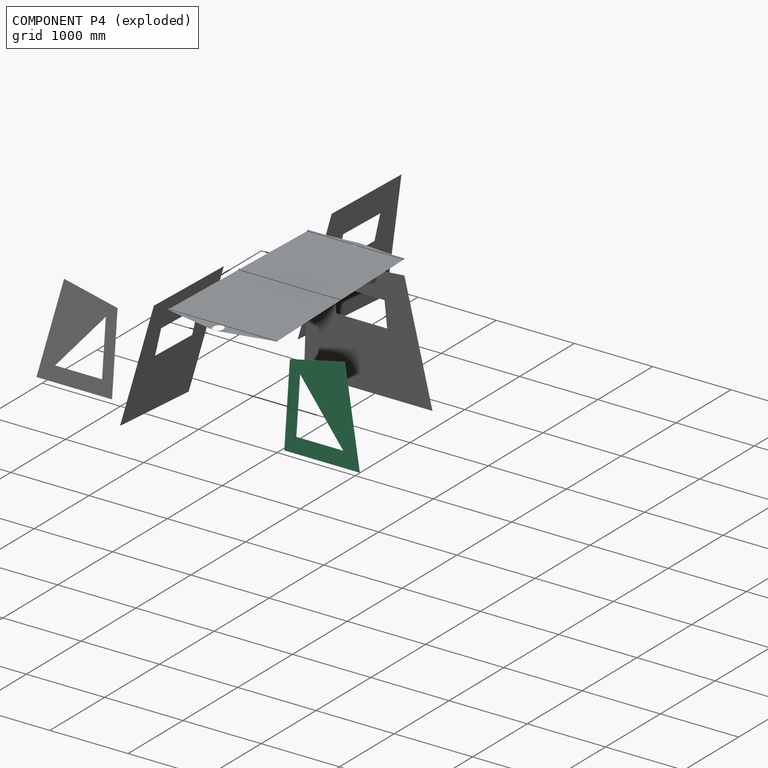
[diagram: component P4 — exploded]
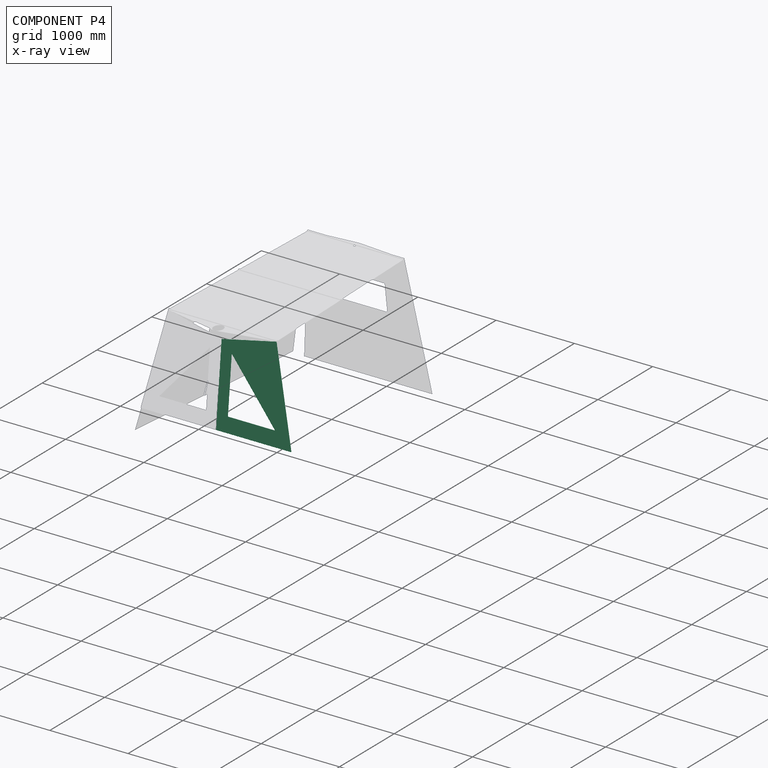
[diagram: component P4 — x-ray view]
COMPONENT P4 — recipe-attached ("Vorderwand-Bb", modeled in this document).
Held by: resting contact with P0 (derived edge); resting contact with P5 (derived edge).
Construction recipe (the document's own serialized feature program — sketch geometry with constraints, then the solid features built on it; lengths are millimeters unless a unit is written):

FEATURE [Sketcher::SketchObject] Sketch014  label="Vorderwand-Bb-Skizze"
  ArcFitTolerance = 1e-06
  AttachmentSupport = -> [XZ_Plane007]
  FullyConstrained = true
  MakeInternals = false
  MapMode = 5
  Placement = pos=(0,0,0) rot=(1,0,0;1.5708rad)
  sketch-geometry (4):
    g0: LineSegment StartX=0 StartY=-148.09 StartZ=0 EndX=693.178 EndY=0 EndZ=0
    g1: LineSegment StartX=693.178 StartY=0 StartZ=0 EndX=965 EndY=-1168.81 EndZ=0
    g2: LineSegment StartX=965 StartY=-1168.81 StartZ=0 EndX=0 EndY=-1168.81 EndZ=0
    g3: LineSegment StartX=0 StartY=-1168.81 StartZ=0 EndX=0 EndY=-148.09 EndZ=0
  constraints (12):
    c: Coincident(g0,g1)
    c: Coincident(g1,g2)
    c: PointOnObject(g2,g-2)
    c: Horizontal(g2)
    c: PointOnObject(g0,g-2)
    c: PointOnObject(g0,g-1)
    c: Coincident(g3,g2)
    c: Coincident(g3,g0)
    c: Distance(g3) = 1020.72
    c: Distance(g2) = 965
    c: Distance(g0) = 708.82
    c: Distance(g-1,g0) = 148.09
FEATURE [PartDesign::Pad] Pad009
  Direction = (0,-1,2e-16)
  Length = 1
  Length2 = 10
  Midplane = true
  Placement = pos=(0,0,0) rot=(1,0,0;1.5708rad)
  Profile = -> Sketch014
  ReferenceAxis = -> Sketch014 [N_Axis]
  Refine = true
  Suppressed = false
  Type = 0
FEATURE [Sketcher::SketchObject] Sketch018
  ArcFitTolerance = 1e-06
  AttachmentSupport = -> [XZ_Plane007]
  FullyConstrained = true
  MakeInternals = false
  MapMode = 5
  Placement = pos=(0,0,0) rot=(1,0,0;1.5708rad)
  sketch-geometry (3):
    g0: LineSegment StartX=740 StartY=-981.16 StartZ=0 EndX=140 EndY=-281.16 EndZ=0
    g1: LineSegment StartX=140 StartY=-281.16 StartZ=0 EndX=140 EndY=-981.16 EndZ=0
    g2: LineSegment StartX=140 StartY=-981.16 StartZ=0 EndX=740 EndY=-981.16 EndZ=0
  constraints (9):
    c: Coincident(g0,g1)
    c: Coincident(g1,g2)
    c: Coincident(g2,g0)
    c: Horizontal(g2)
    c: Distance(g1) = 700
    c: Perpendicular(g1,g2)
    c: DistanceX(g-2,g0) = 140
    c: DistanceY(g-1,g0) = -281.16
    c: Distance(g2) = 600
FEATURE [PartDesign::Pocket] Pocket006
  BaseFeature = -> Pad009
  Direction = (0,1,-2e-16)
  Length = 5
  Length2 = 5
  Midplane = true
  Placement = pos=(0,0,0) rot=(1,0,0;1.5708rad)
  Profile = -> Sketch018
  ReferenceAxis = -> Sketch018 [N_Axis]
  Refine = true
  Suppressed = false
  Type = 1
FEATURE [PartDesign::Body] Body006  label="Vorderwand-Bb"
  AllowCompound = false
  Group = -> [Sketch014,Pad009,Sketch018,Pocket006]
  Origin = -> Origin007
  Placement = pos=(0,148.8,0) rot=(1,0,0;6.18318rad)
  Tip = -> Pocket006
PROVENANCE & LICENSES
Assembly and component geometry: a FreeCAD (.FCStd) document from a public repository crawl; components, placements and joints were extracted with FreeCAD and each solid tessellated.
Construction recipes: the document's own serialized feature recipes (and, for linked parts, the recipes of companion documents from the same project).
License: cc-by-sa-4.0.
Joints: native FreeCAD joints and A2plus constraints are mapped to standard mate types; edges marked 'derived from contact' connect touching components and are measured from the geometry, not modeled.
Verification: 6 of this assembly's 6 components carry a construction recipe (6 from this document itself); the rest are geometry-only. Every component's tessellation passed the extraction mesh gates (mesh-volume checksum against the B-rep where available, bounding-box inflation <= 2%).
Renders: orthographic iso camera (az 35 / el 25); the floor grid conveys scale (grid pitch printed in each image; no ruler). In the exploded view each component is displaced by its stored offset vector: the offsets alone carry the explosion direction (mate normal/axis signs are not orientation cues and do not encode it), and separation distances are assigned per mate-chain, not proportionally to assembly-order depth.
